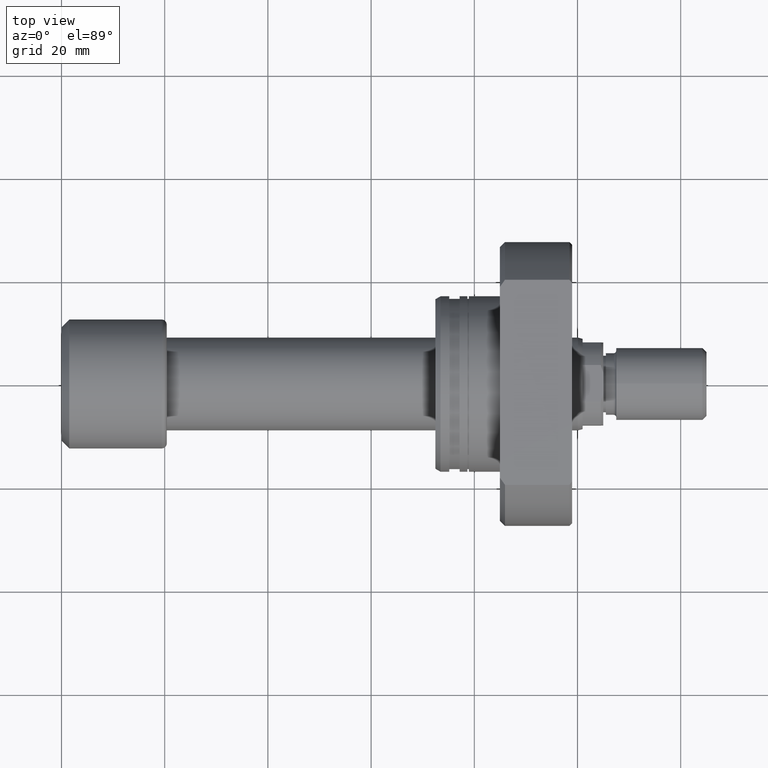
[diagram: clean part render]
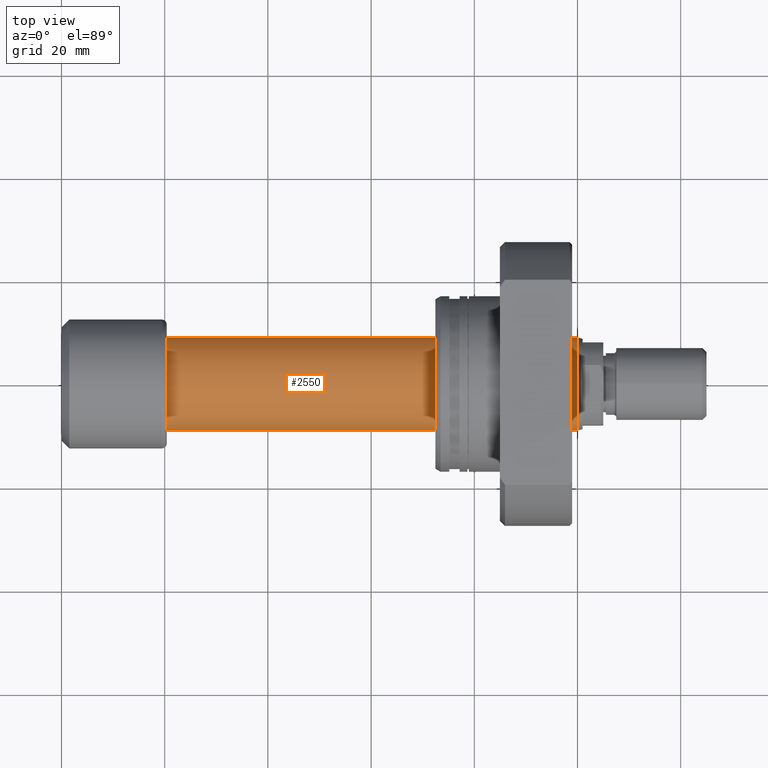
[diagram: same view with one face highlighted and labeled with its STEP entity id]
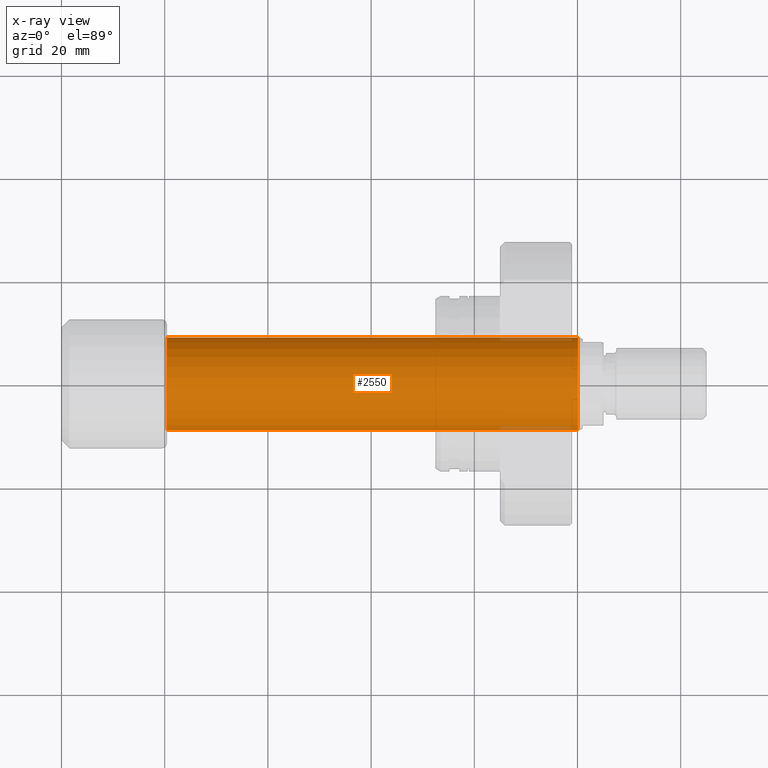
[diagram: x-ray of the same camera — body ghosted, the highlighted face saturated]
A machine part, top view. The second image highlights one B-rep face of the part: STEP entity #2550.
The next image is the same camera in x-ray: the body ghosted, the highlighted face saturated — about 1% of this face is hidden behind the body in this view.
In plain terms, the highlighted cylindrical surface (partial cylindrical patch) has radius 9 mm, axis along (-1, -0, -0).
Its self-contained STEP definition (entity closure, byte-faithful):
#3 = EDGE_LOOP ( 'NONE', ( #3218, #473, #2382, #1623 ) ) ;
#119 = EDGE_CURVE ( 'NONE', #1845, #2451, #966, .T. ) ;
#204 = DIRECTION ( 'NONE',  ( 0.000000000000000000, -1.000000000000000000, 0.000000000000000000 ) ) ;
#330 = LINE ( 'NONE', #3211, #2873 ) ;
#464 = DIRECTION ( 'NONE',  ( 1.069542322069065955E-17, -1.000000000000000000, 0.000000000000000000 ) ) ;
#473 = ORIENTED_EDGE ( 'NONE', *, *, #119, .T. ) ;
#490 = DIRECTION ( 'NONE',  ( -1.000000000000000000, -1.069542322069065801E-17, -0.000000000000000000 ) ) ;
#593 = CARTESIAN_POINT ( 'NONE',  ( 100.0667575123237754, 9.000000000000195399, 1.102182119232641577E-15 ) ) ;
#660 = VECTOR ( 'NONE', #3227, 1000.000000000000000 ) ;
#751 = CARTESIAN_POINT ( 'NONE',  ( 20.39999999999999503, -9.000000000000000000, 0.000000000000000000 ) ) ;
#966 = LINE ( 'NONE', #2123, #660 ) ;
#1082 = CARTESIAN_POINT ( 'NONE',  ( 100.0667575123237754, 1.070256321916529121E-15, 0.000000000000000000 ) ) ;
#1141 = CARTESIAN_POINT ( 'NONE',  ( 20.39999999999999503, 2.181866337020893623E-16, 0.000000000000000000 ) ) ;
#1355 = VERTEX_POINT ( 'NONE', #751 ) ;
#1520 = AXIS2_PLACEMENT_3D ( 'NONE', #3581, #2276, #464 ) ;
#1532 = DIRECTION ( 'NONE',  ( -1.000000000000000000, -1.069542322069065801E-17, -0.000000000000000000 ) ) ;
#1623 = ORIENTED_EDGE ( 'NONE', *, *, #1868, .F. ) ;
#1845 = VERTEX_POINT ( 'NONE', #593 ) ;
#1868 = EDGE_CURVE ( 'NONE', #3177, #1355, #330, .T. ) ;
#2123 = CARTESIAN_POINT ( 'NONE',  ( -9.625880898621695591E-17, 9.000000000000095923, 1.102182119232629744E-15 ) ) ;
#2179 = AXIS2_PLACEMENT_3D ( 'NONE', #1141, #3388, #2573 ) ;
#2276 = DIRECTION ( 'NONE',  ( -1.000000000000000000, -1.069542322069065801E-17, -0.000000000000000000 ) ) ;
#2382 = ORIENTED_EDGE ( 'NONE', *, *, #2904, .F. ) ;
#2445 = CYLINDRICAL_SURFACE ( 'NONE', #1520, 9.000000000000095923 ) ;
#2451 = VERTEX_POINT ( 'NONE', #3033 ) ;
#2550 = ADVANCED_FACE ( 'NONE', ( #3135 ), #2445, .T. ) ;
#2573 = DIRECTION ( 'NONE',  ( 0.000000000000000000, -1.000000000000000000, 0.000000000000000000 ) ) ;
#2873 = VECTOR ( 'NONE', #1532, 1000.000000000000000 ) ;
#2904 = EDGE_CURVE ( 'NONE', #1355, #2451, #3484, .T. ) ;
#2946 = AXIS2_PLACEMENT_3D ( 'NONE', #1082, #490, #204 ) ;
#3033 = CARTESIAN_POINT ( 'NONE',  ( 20.39999999999999503, 9.000000000000000000, 1.102182119232623630E-15 ) ) ;
#3064 = CIRCLE ( 'NONE', #2946, 9.000000000000193623 ) ;
#3135 = FACE_OUTER_BOUND ( 'NONE', #3, .T. ) ;
#3177 = VERTEX_POINT ( 'NONE', #3287 ) ;
#3211 = CARTESIAN_POINT ( 'NONE',  ( 9.625880898621695591E-17, -9.000000000000095923, 0.000000000000000000 ) ) ;
#3218 = ORIENTED_EDGE ( 'NONE', *, *, #3288, .T. ) ;
#3227 = DIRECTION ( 'NONE',  ( -1.000000000000000000, -1.069542322069065801E-17, -0.000000000000000000 ) ) ;
#3287 = CARTESIAN_POINT ( 'NONE',  ( 100.0667575123237754, -9.000000000000191847, 0.000000000000000000 ) ) ;
#3288 = EDGE_CURVE ( 'NONE', #3177, #1845, #3064, .T. ) ;
#3388 = DIRECTION ( 'NONE',  ( -1.000000000000000000, -1.069542322069065801E-17, -0.000000000000000000 ) ) ;
#3484 = CIRCLE ( 'NONE', #2179, 9.000000000000000000 ) ;
#3581 = CARTESIAN_POINT ( 'NONE',  ( 0.000000000000000000, 0.000000000000000000, 0.000000000000000000 ) ) ;